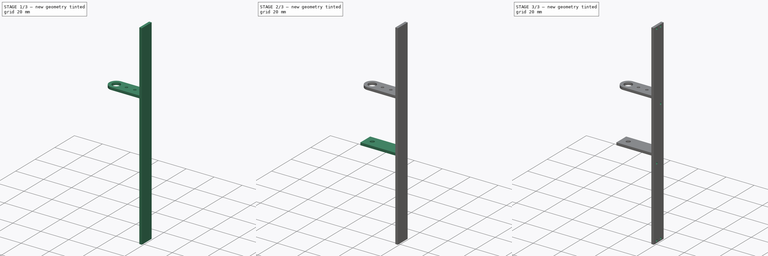
[diagram: build sequence overview — one tinted view per stage of 3, left to right]
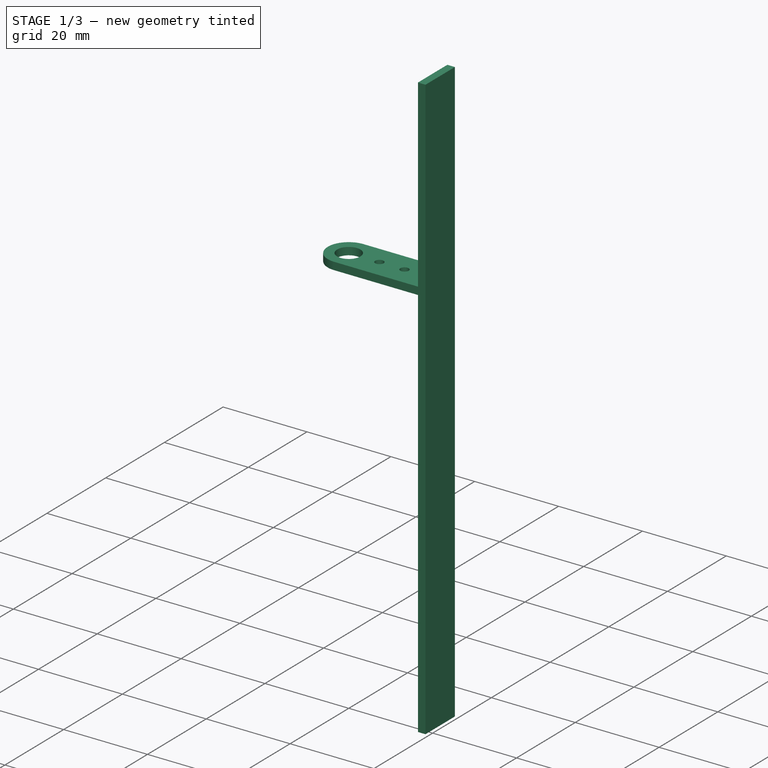
[diagram: stage 1 of 3 — iso view after this stage's code; geometry added in this stage tinted green]
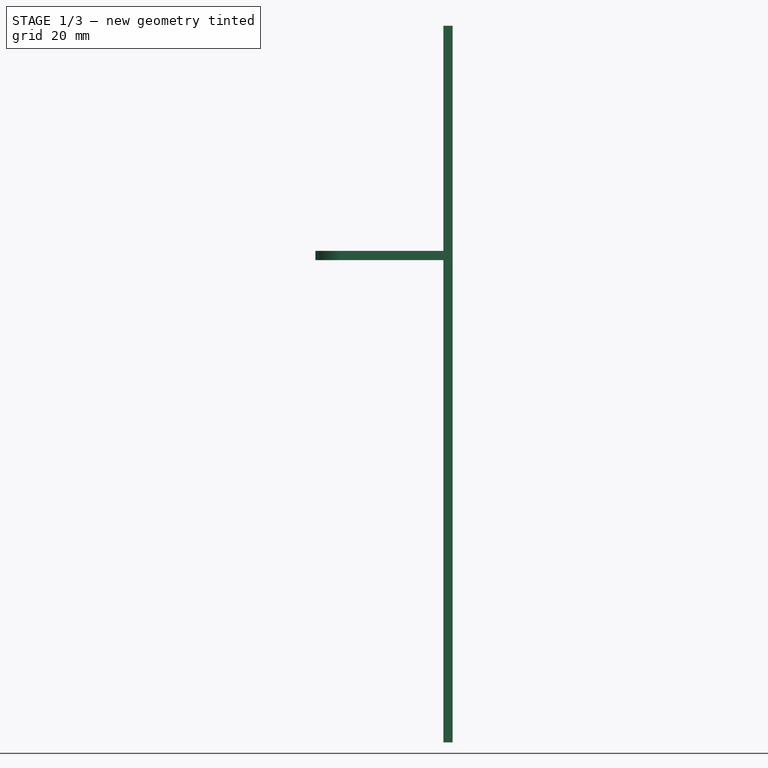
[diagram: stage 1 of 3 — front view after this stage's code; geometry added in this stage tinted green]
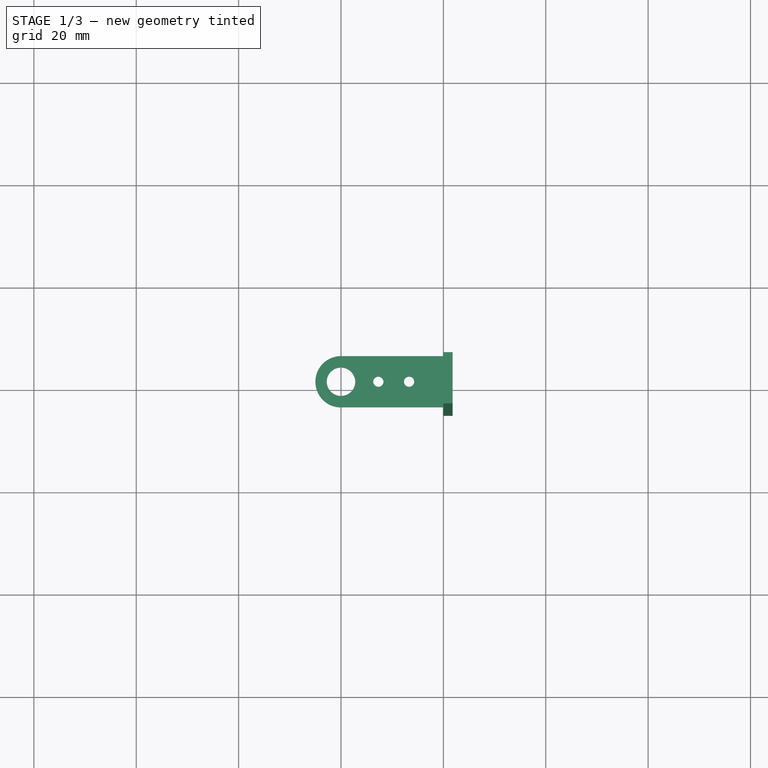
[diagram: stage 1 of 3 — top view after this stage's code; geometry added in this stage tinted green]
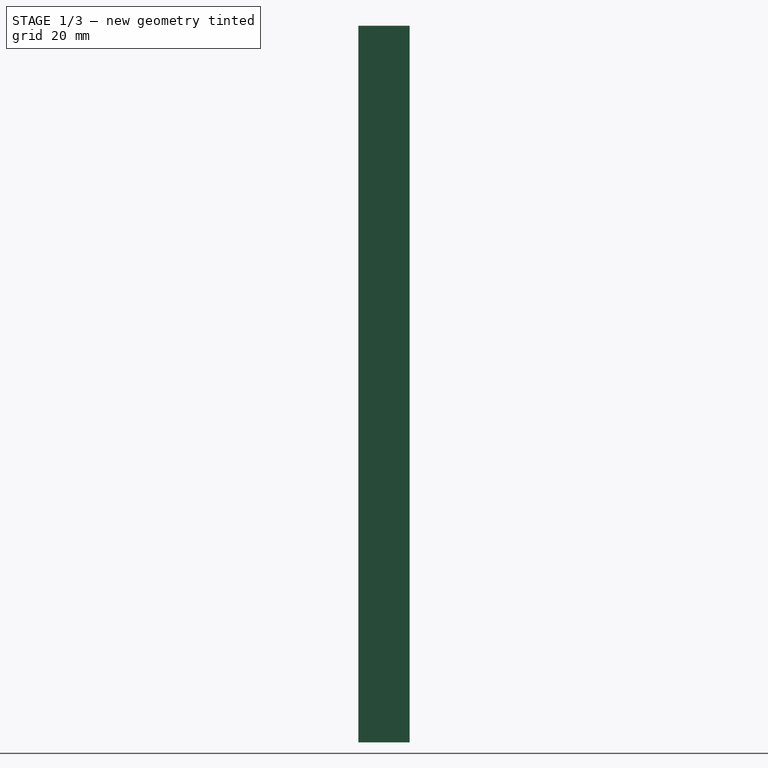
[diagram: stage 1 of 3 — right view after this stage's code; geometry added in this stage tinted green]
FCSTD DOCUMENT  (FreeCAD 0.16R5150 (Git))
Label: delock_95953_dual_v1
License: All rights reserved
LicenseURL: http://en.wikipedia.org/wiki/All_rights_reserved
objects: Sketcher::SketchObject×6, PartDesign::Pad×4, PartDesign::Pocket×2
note: 18 computed .brp shape members not serialized (recipe doc carries the construction recipe); baked Part::Feature solids carry a one-line shape summary decoded from their .brp

FEATURE [Sketcher::SketchObject] Sketch
  sketch-geometry (9):
    g0: Circle CenterX=0 CenterY=0 CenterZ=0 NormalX=0 NormalY=0 NormalZ=1 Radius=2.78
    g1: Circle CenterX=7.3 CenterY=0 CenterZ=0 NormalX=0 NormalY=0 NormalZ=1 Radius=1
    g2: Circle CenterX=13.3 CenterY=0 CenterZ=0 NormalX=0 NormalY=0 NormalZ=1 Radius=1
    g3: ArcOfCircle CenterX=0 CenterY=0 CenterZ=0 NormalX=0 NormalY=0 NormalZ=1 Radius=5 StartAngle=1.5708 EndAngle=4.71239
    g4: LineSegment StartX=0 StartY=5 StartZ=0 EndX=20 EndY=5 EndZ=0
    g5: LineSegment StartX=0 StartY=-5 StartZ=0 EndX=20 EndY=-5 EndZ=0
    g6: LineSegment StartX=20 StartY=5 StartZ=0 EndX=20 EndY=-5 EndZ=0
    g7: GeomPoint [constr] X=20 Y=0 Z=0
    g8: GeomPoint [constr] X=-5 Y=0 Z=0
  constraints (24):
    c: Coincident(g0,g-1)
    c: PointOnObject(g1,g-1)
    c: PointOnObject(g2,g-1)
    c: Equal(g2,g1)
    c: Radius(g0) = 2.78
    c: Radius(g1) = 1
    c: DistanceX(g1,g2) = 6
    c: DistanceX(g-1,g1) = 7.3
    c: Coincident(g3,g-1)
    c: PointOnObject(g3,g-2)
    c: PointOnObject(g3,g-2)
    c: Radius(g3) = 5
    c: Coincident(g4,g3)
    c: Horizontal(g4)
    c: Coincident(g5,g3)
    c: Horizontal(g5)
    c: Coincident(g6,g4)
    c: Coincident(g6,g5)
    c: Vertical(g6)
    c: PointOnObject(g7,g6)
    c: PointOnObject(g8,g3)
    c: PointOnObject(g8,g-1)
    c: PointOnObject(g7,g-1)
    c: DistanceX(g4,g8) = -25
FEATURE [PartDesign::Pad] Pad
  Length = 1.8
  Length2 = 100
  Sketch = -> Sketch
  Type = 0
FEATURE [Sketcher::SketchObject] Sketch001
  ExternalGeometry = -> [Pad]
  Placement = pos=(20,0,0) rot=(0.57735,0.57735,0.57735;2.0944rad)
  Support = -> Pad [Face3]
  sketch-geometry (5):
    g0: LineSegment StartX=-5 StartY=45.8 StartZ=0 EndX=5 EndY=45.8 EndZ=0
    g1: LineSegment StartX=5 StartY=45.8 StartZ=0 EndX=5 EndY=-94.2 EndZ=0
    g2: LineSegment StartX=5 StartY=-94.2 StartZ=0 EndX=-5 EndY=-94.2 EndZ=0
    g3: LineSegment StartX=-5 StartY=-94.2 StartZ=0 EndX=-5 EndY=45.8 EndZ=0
    g4: LineSegment [constr] StartX=-5 StartY=-24.2 StartZ=0 EndX=5 EndY=-24.2 EndZ=0
  constraints (16):
    c: Coincident(g0,g1)
    c: Coincident(g1,g2)
    c: Coincident(g2,g3)
    c: Coincident(g3,g0)
    c: Horizontal(g0)
    c: Horizontal(g2)
    c: Vertical(g1)
    c: Vertical(g3)
    c: PointOnObject(g-5,g1)
    c: PointOnObject(g-4,g3)
    c: Distance(g1) = 140
    c: PointOnObject(g4,g3)
    c: PointOnObject(g4,g1)
    c: Horizontal(g4)
    c: Symmetric(g0,g1,g4)
    c: DistanceY(g4,g-6) = 24.2
FEATURE [PartDesign::Pad] Pad001
  Length = 1.8
  Length2 = 100
  Sketch = -> Sketch001
  Type = 0
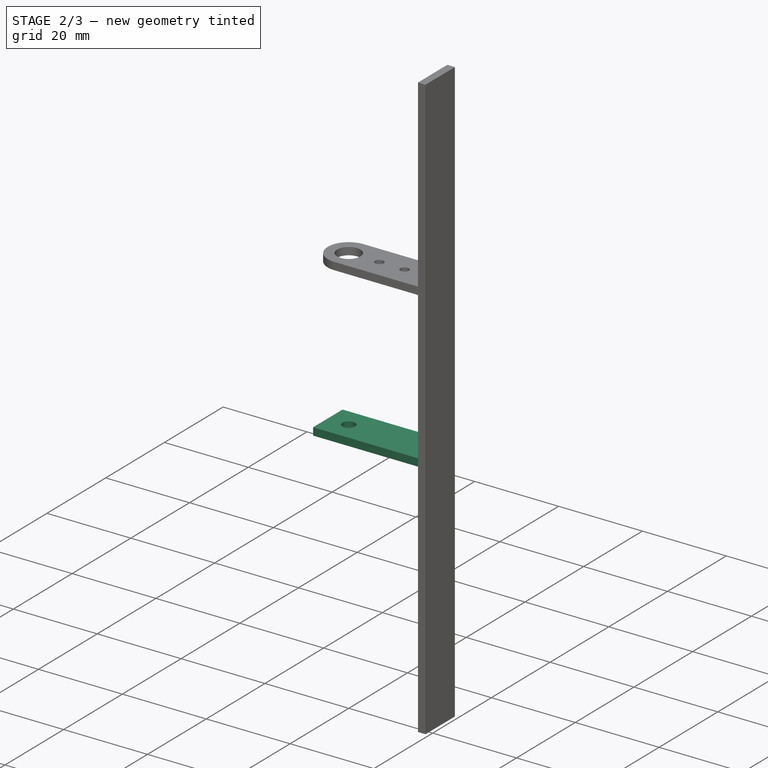
[diagram: stage 2 of 3 — iso view after this stage's code; geometry added in this stage tinted green]
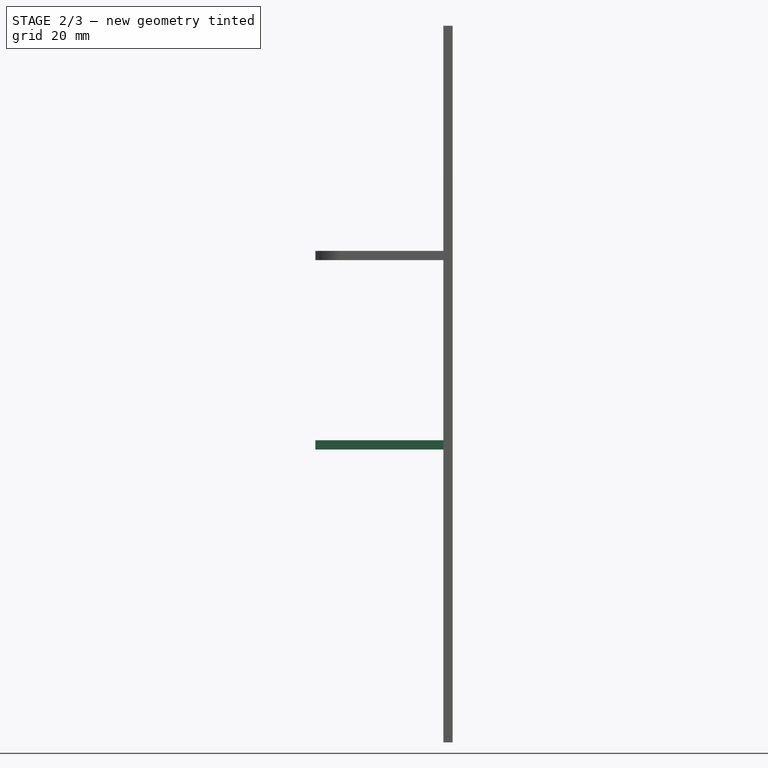
[diagram: stage 2 of 3 — front view after this stage's code; geometry added in this stage tinted green]
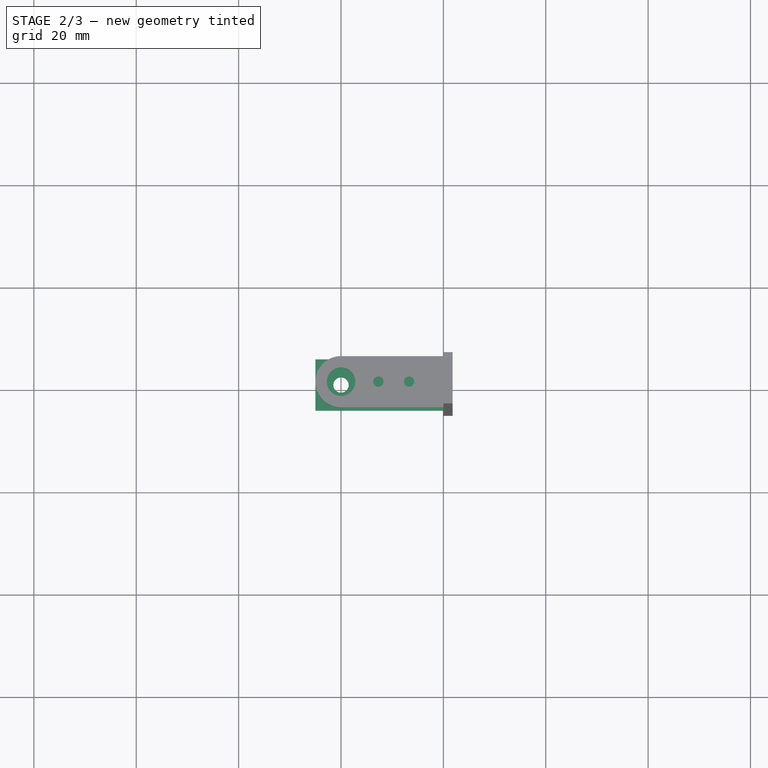
[diagram: stage 2 of 3 — top view after this stage's code; geometry added in this stage tinted green]
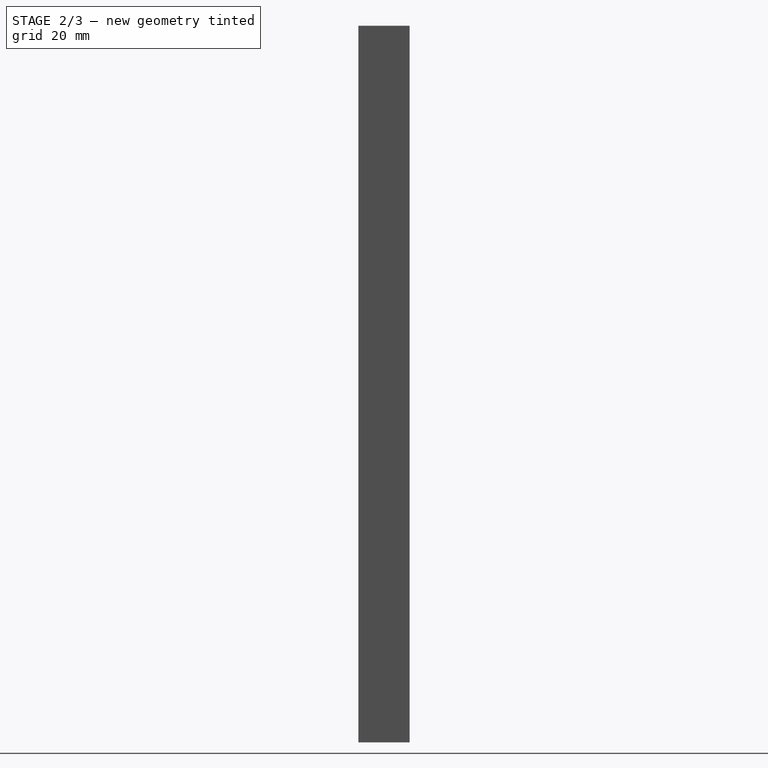
[diagram: stage 2 of 3 — right view after this stage's code; geometry added in this stage tinted green]
FEATURE [Sketcher::SketchObject] Sketch002
  ExternalGeometry = -> [Pad001]
  Placement = pos=(20,0,0) rot=(0.57735,-0.57735,-0.57735;2.0944rad)
  Support = -> Pad001 [Face8]
  sketch-geometry (4):
    g0: LineSegment StartX=-5 StartY=-35.2 StartZ=0 EndX=5 EndY=-35.2 EndZ=0
    g1: LineSegment StartX=5 StartY=-35.2 StartZ=0 EndX=5 EndY=-37 EndZ=0
    g2: LineSegment StartX=5 StartY=-37 StartZ=0 EndX=-5 EndY=-37 EndZ=0
    g3: LineSegment StartX=-5 StartY=-37 StartZ=0 EndX=-5 EndY=-35.2 EndZ=0
  constraints (12):
    c: Coincident(g0,g1)
    c: Coincident(g1,g2)
    c: Coincident(g2,g3)
    c: Coincident(g3,g0)
    c: Horizontal(g0)
    c: Horizontal(g2)
    c: Vertical(g1)
    c: Vertical(g3)
    c: PointOnObject(g0,g-3)
    c: PointOnObject(g0,g-4)
    c: DistanceY(g0,g2) = -1.8
    c: DistanceY(g1,g-3) = 37
FEATURE [PartDesign::Pad] Pad002
  Length = 25
  Length2 = 100
  Sketch = -> Sketch002
  Type = 0
FEATURE [Sketcher::SketchObject] Sketch003
  ExternalGeometry = -> [Pad002]
  Placement = pos=(0,0,-37) rot=(1,0,0;3.14159rad)
  Support = -> Pad002 [Face20]
  sketch-geometry (1):
    g0: Circle CenterX=0 CenterY=0 CenterZ=0 NormalX=0 NormalY=0 NormalZ=1 Radius=1.5
  constraints (2):
    c: Coincident(g0,g-1)
    c: Radius(g0) = 1.5
FEATURE [PartDesign::Pocket] Pocket
  Length = 5
  Sketch = -> Sketch003
  Type = 1
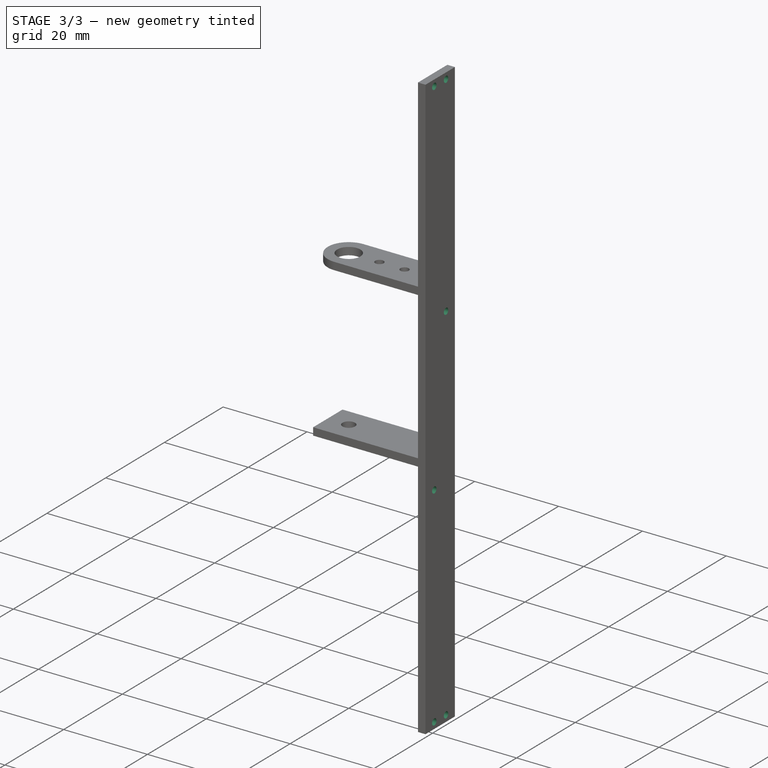
[diagram: stage 3 of 3 — iso view after this stage's code; geometry added in this stage tinted green]
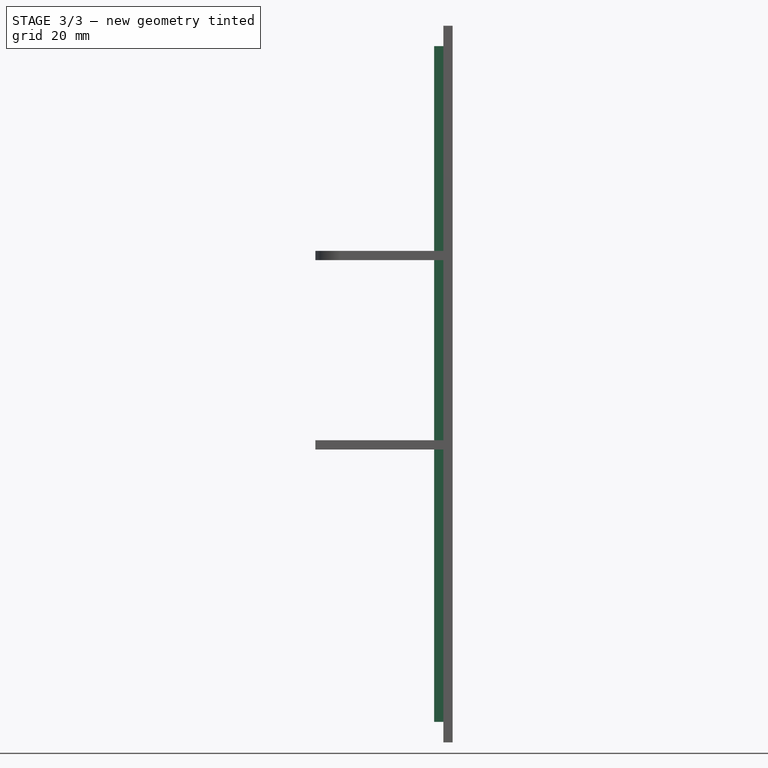
[diagram: stage 3 of 3 — front view after this stage's code; geometry added in this stage tinted green]
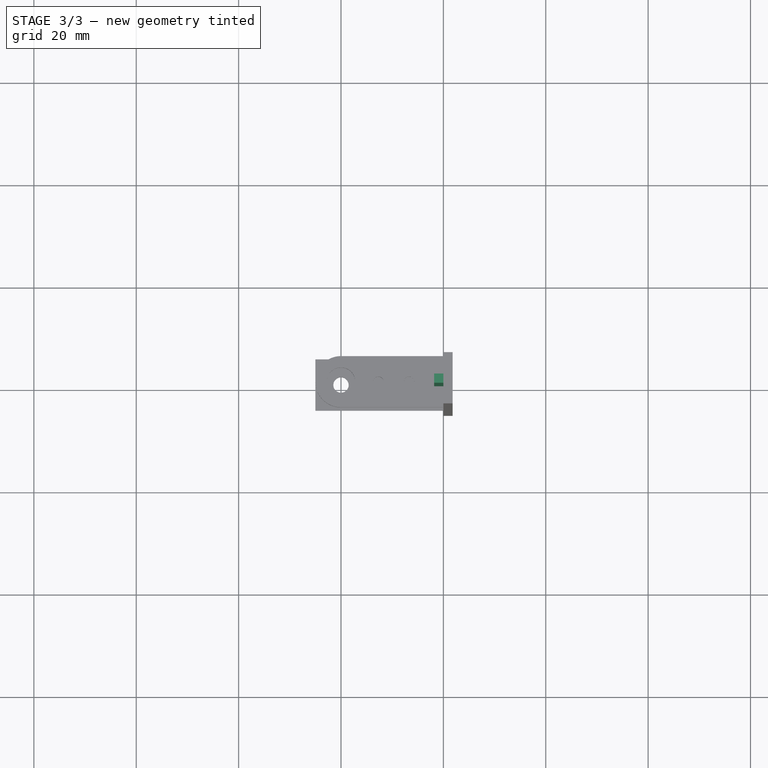
[diagram: stage 3 of 3 — top view after this stage's code; geometry added in this stage tinted green]
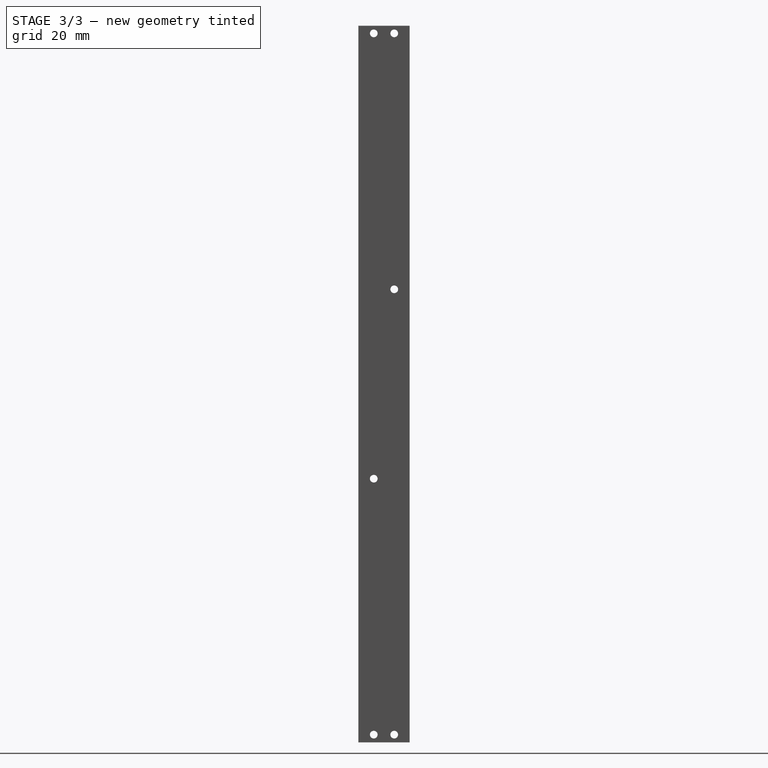
[diagram: stage 3 of 3 — right view after this stage's code; geometry added in this stage tinted green]
FEATURE [Sketcher::SketchObject] Sketch004
  ExternalGeometry = -> [Pocket]
  Placement = pos=(21.8,0,0) rot=(0.57735,0.57735,0.57735;2.0944rad)
  Support = -> Pocket [Face14]
  sketch-geometry (24):
    g0: Circle [constr] CenterX=-2 CenterY=-92.7 CenterZ=0 NormalX=0 NormalY=0 NormalZ=1 Radius=1
    g1: Circle [constr] CenterX=2 CenterY=-92.7 CenterZ=0 NormalX=0 NormalY=0 NormalZ=1 Radius=1
    g2: Circle [constr] CenterX=-2 CenterY=44.3 CenterZ=0 NormalX=0 NormalY=0 NormalZ=1 Radius=1
    g3: Circle [constr] CenterX=2 CenterY=44.3 CenterZ=0 NormalX=0 NormalY=0 NormalZ=1 Radius=1
    g4: Circle [constr] CenterX=2 CenterY=-5.7 CenterZ=0 NormalX=0 NormalY=0 NormalZ=1 Radius=1
    g5: Circle [constr] CenterX=-2 CenterY=-42.7 CenterZ=0 NormalX=0 NormalY=0 NormalZ=1 Radius=1
    g6: LineSegment [constr] StartX=2 StartY=-92.7 StartZ=0 EndX=-2 EndY=-92.7 EndZ=0
    g7: LineSegment [constr] StartX=2 StartY=44.3 StartZ=0 EndX=-2 EndY=44.3 EndZ=0
    g8: LineSegment [constr] StartX=2 StartY=-5.7 StartZ=0 EndX=0 EndY=-5.7 EndZ=0
    g9: LineSegment [constr] StartX=-2 StartY=-42.7 StartZ=0 EndX=0 EndY=-42.7 EndZ=0
    g10: LineSegment [constr] StartX=0 StartY=-5.7 StartZ=0 EndX=0 EndY=44.3 EndZ=0
    g11: LineSegment [constr] StartX=0 StartY=-42.7 StartZ=0 EndX=0 EndY=-92.7 EndZ=0
    g12: LineSegment [constr] StartX=-2 StartY=-43.7 StartZ=0 EndX=-2 EndY=-91.7 EndZ=0
    g13: GeomPoint [constr] X=1 Y=44.3 Z=0
    g14: GeomPoint [constr] X=-1 Y=44.3 Z=0
    g15: LineSegment [constr] StartX=2 StartY=-5.7 StartZ=0 EndX=2 EndY=44.3 EndZ=0
    g16: LineSegment [constr] StartX=2 StartY=-92.7 StartZ=0 EndX=2 EndY=-94.2 EndZ=0
    g17: LineSegment [constr] StartX=2 StartY=44.3 StartZ=0 EndX=2 EndY=45.8 EndZ=0
    g18: Circle CenterX=-2 CenterY=-92.7 CenterZ=0 NormalX=0 NormalY=0 NormalZ=1 Radius=0.75
    g19: Circle CenterX=2 CenterY=-92.7 CenterZ=0 NormalX=0 NormalY=0 NormalZ=1 Radius=0.75
    g20: Circle CenterX=-2 CenterY=-42.7 CenterZ=0 NormalX=0 NormalY=0 NormalZ=1 Radius=0.75
    g21: Circle CenterX=2 CenterY=-5.7 CenterZ=0 NormalX=0 NormalY=0 NormalZ=1 Radius=0.75
    g22: Circle CenterX=2 CenterY=44.3 CenterZ=0 NormalX=0 NormalY=0 NormalZ=1 Radius=0.75
    g23: Circle CenterX=-2 CenterY=44.3 CenterZ=0 NormalX=0 NormalY=0 NormalZ=1 Radius=0.75
  constraints (60):
    c: Equal(g1,g0)
    c: Equal(g0,g5)
    c: Equal(g5,g4)
    c: Equal(g4,g3)
    c: Equal(g3,g2)
    c: Symmetric(g2,g3,g-2)
    c: Symmetric(g0,g1,g-2)
    c: Coincident(g6,g1)
    c: Coincident(g6,g0)
    c: Coincident(g7,g3)
    c: Coincident(g7,g2)
    c: Coincident(g8,g4)
    c: PointOnObject(g8,g-2)
    c: Horizontal(g8)
    c: Coincident(g9,g5)
    c: PointOnObject(g9,g-2)
    c: Horizontal(g9)
    c: Equal(g9,g8)
    c: Equal(g7,g6)
    c: Coincident(g10,g8)
    c: PointOnObject(g10,g-2)
    c: PointOnObject(g10,g7)
    c: Coincident(g11,g9)
    c: PointOnObject(g11,g6)
    c: Vertical(g11)
    c: Equal(g10,g11)
    c: Radius(g1) = 1
    c: PointOnObject(g12,g5)
    c: PointOnObject(g12,g0)
    c: Vertical(g12)
    c: PointOnObject(g5,g12)
    c: Distance(g12) = 48
    c: PointOnObject(g13,g7)
    c: PointOnObject(g13,g3)
    c: PointOnObject(g14,g2)
    c: DistanceX(g13,g14) = -2
    c: Coincident(g15,g4)
    c: Vertical(g15)
    c: Coincident(g15,g3)
    c: PointOnObject(g14,g7)
    c: Coincident(g16,g1)
    c: PointOnObject(g16,g-3)
    c: Vertical(g16)
    c: Distance(g16) = 1.5
    c: Coincident(g17,g3)
    c: PointOnObject(g17,g-6)
    c: Vertical(g17)
    c: Equal(g17,g16)
    c: Coincident(g18,g0)
    c: Coincident(g19,g1)
    c: Equal(g18,g19)
    c: Coincident(g20,g5)
    c: Coincident(g21,g4)
    c: Coincident(g22,g3)
    c: Coincident(g23,g2)
    c: Equal(g22,g23)
    c: Equal(g22,g21)
    c: Equal(g21,g20)
    c: Equal(g20,g19)
    c: Radius(g19) = 0.75
FEATURE [PartDesign::Pocket] Pocket001
  Length = 5
  Sketch = -> Sketch004
  Type = 1
FEATURE [Sketcher::SketchObject] Sketch005
  ExternalGeometry = -> [Pocket001]
  Placement = pos=(20,0,0) rot=(0.57735,-0.57735,-0.57735;2.0944rad)
  Support = -> Pocket001 [Face16]
  sketch-geometry (12):
    g0: LineSegment StartX=-0.9 StartY=-37 StartZ=0 EndX=0.9 EndY=-37 EndZ=0
    g1: LineSegment StartX=0.9 StartY=-37 StartZ=0 EndX=0.9 EndY=-90.2 EndZ=0
    g2: LineSegment StartX=0.9 StartY=-90.2 StartZ=0 EndX=-0.9 EndY=-90.2 EndZ=0
    g3: LineSegment StartX=-0.9 StartY=-90.2 StartZ=0 EndX=-0.9 EndY=-37 EndZ=0
    g4: LineSegment StartX=-0.9 StartY=0 StartZ=0 EndX=0.9 EndY=0 EndZ=0
    g5: LineSegment StartX=0.9 StartY=0 StartZ=0 EndX=0.9 EndY=-35.2 EndZ=0
    g6: LineSegment StartX=0.9 StartY=-35.2 StartZ=0 EndX=-0.9 EndY=-35.2 EndZ=0
    g7: LineSegment StartX=-0.9 StartY=-35.2 StartZ=0 EndX=-0.9 EndY=0 EndZ=0
    g8: LineSegment StartX=-0.9 StartY=41.8 StartZ=0 EndX=0.9 EndY=41.8 EndZ=0
    g9: LineSegment StartX=0.9 StartY=41.8 StartZ=0 EndX=0.9 EndY=1.8 EndZ=0
    g10: LineSegment StartX=0.9 StartY=1.8 StartZ=0 EndX=-0.9 EndY=1.8 EndZ=0
    g11: LineSegment StartX=-0.9 StartY=1.8 StartZ=0 EndX=-0.9 EndY=41.8 EndZ=0
  constraints (36):
    c: Coincident(g0,g1)
    c: Coincident(g1,g2)
    c: Coincident(g2,g3)
    c: Coincident(g3,g0)
    c: Horizontal(g0)
    c: Horizontal(g2)
    c: Vertical(g1)
    c: Vertical(g3)
    c: Symmetric(g2,g1,g-2)
    c: DistanceY(g1,g-4) = -4
    c: PointOnObject(g0,g-5)
    c: Distance(g2) = 1.8
    c: Coincident(g4,g5)
    c: Coincident(g5,g6)
    c: Coincident(g6,g7)
    c: Coincident(g7,g4)
    c: Horizontal(g4)
    c: Horizontal(g6)
    c: Vertical(g5)
    c: Vertical(g7)
    c: PointOnObject(g4,g-1)
    c: Equal(g6,g2)
    c: PointOnObject(g5,g-6)
    c: Symmetric(g5,g6,g-2)
    c: Coincident(g8,g9)
    c: Coincident(g9,g10)
    c: Coincident(g10,g11)
    c: Coincident(g11,g8)
    c: Horizontal(g8)
    c: Horizontal(g10)
    c: Vertical(g9)
    c: Vertical(g11)
    c: Symmetric(g9,g10,g-2)
    c: Equal(g10,g4)
    c: PointOnObject(g9,g-7)
    c: DistanceY(g8,g-3) = 4
FEATURE [PartDesign::Pad] Pad003
  Length = 1.8
  Length2 = 100
  Sketch = -> Sketch005
  Type = 0
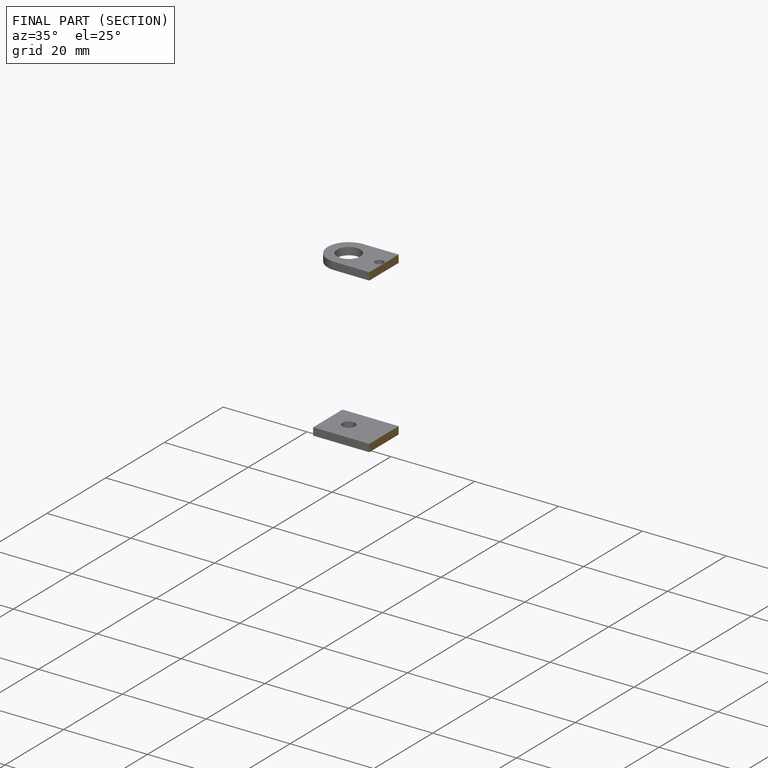
[diagram: finished part — half-section view (interior)]
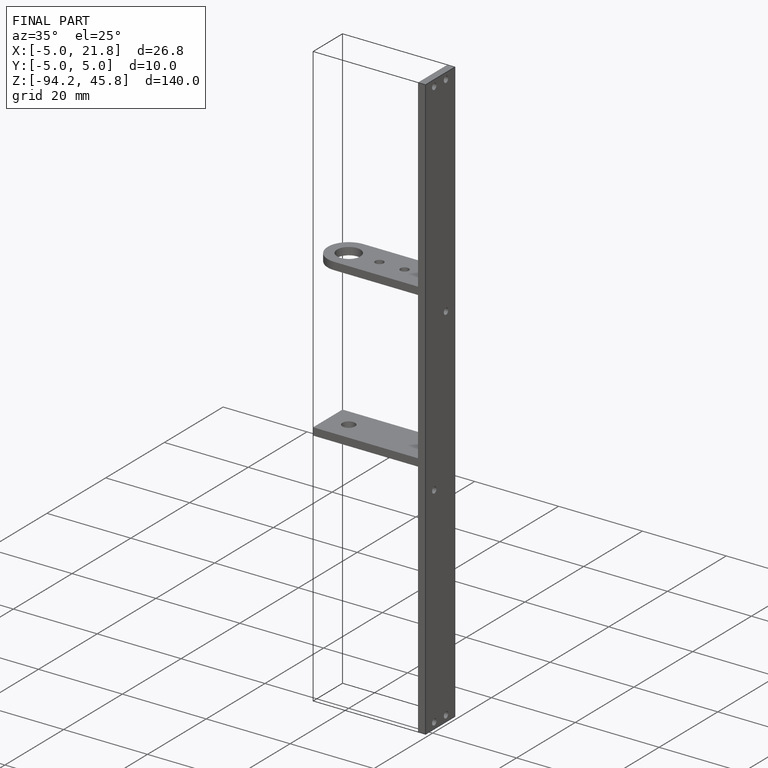
[diagram: finished part — iso view with bounding-box wireframe]
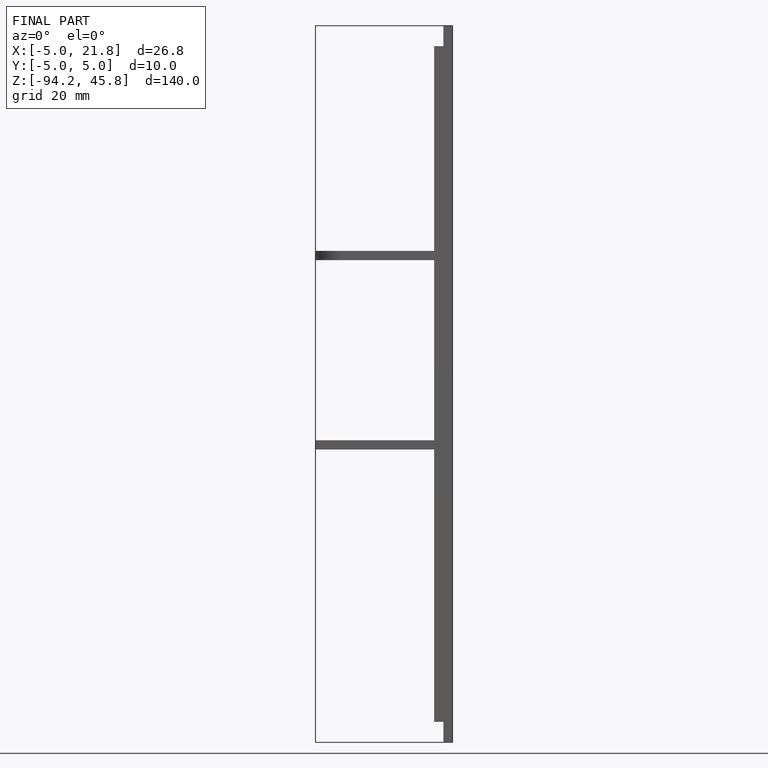
[diagram: finished part — front view with bounding-box wireframe]
